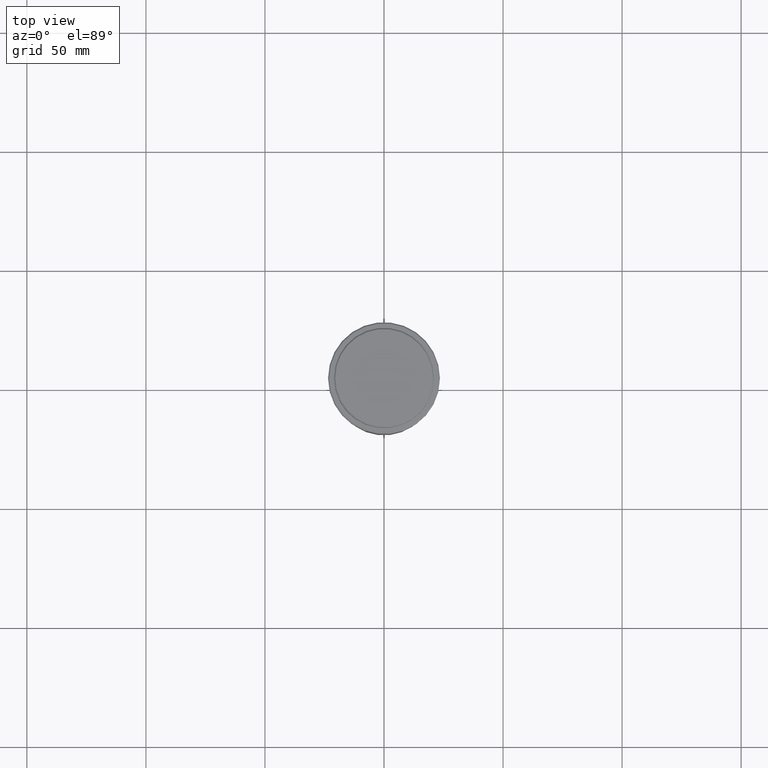
[diagram: clean part render]
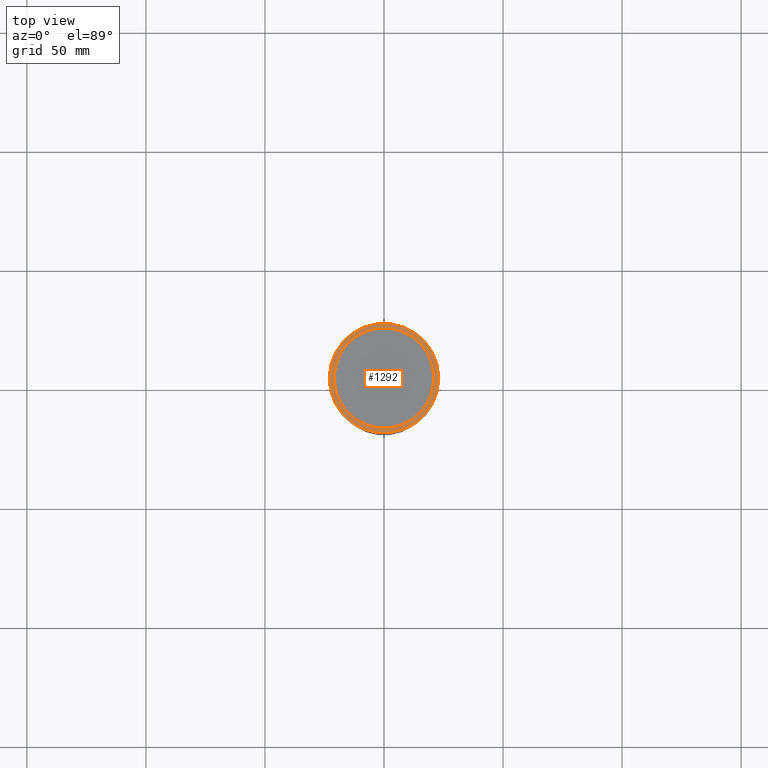
[diagram: same view with one face highlighted and labeled with its STEP entity id]
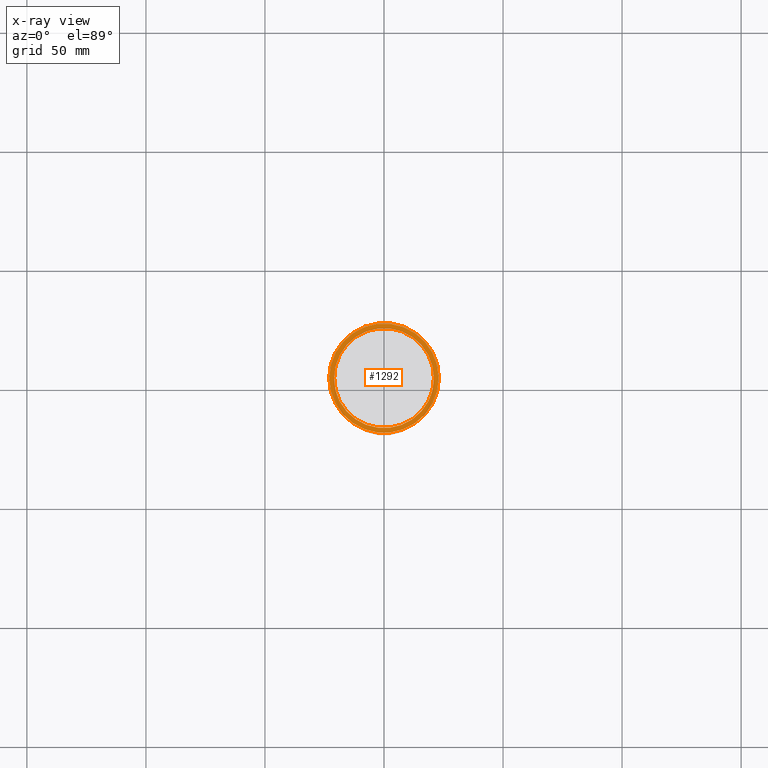
[diagram: x-ray of the same camera — body ghosted, the highlighted face saturated]
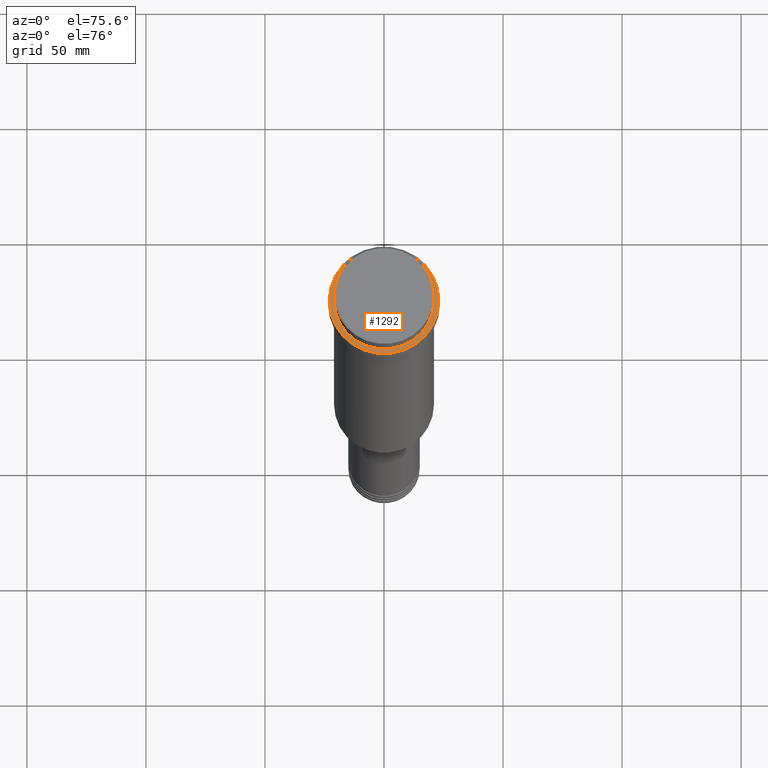
[diagram: same view with one face highlighted and labeled with its STEP entity id]
A machine part, top view. The second image highlights one B-rep face of the part: STEP entity #1292.
The next image is the same camera in x-ray: the body ghosted, the highlighted face saturated — about 0% of this face is hidden behind the body in this view.
A second angle (auxiliary view) of the same face is appended — the face is thin or edge-on in the first view.
In plain terms, the highlighted planar face has unit normal (0, -0, 1).
Its self-contained STEP definition (entity closure, byte-faithful):
#47 = EDGE_CURVE ( 'NONE', #1325, #506, #374, .T. ) ;
#92 = DIRECTION ( 'NONE',  ( 1.000000000000000000, 0.000000000000000000, 0.000000000000000000 ) ) ;
#95 = DIRECTION ( 'NONE',  ( 0.000000000000000000, -0.000000000000000000, 1.000000000000000000 ) ) ;
#107 = ORIENTED_EDGE ( 'NONE', *, *, #339, .T. ) ;
#138 = DIRECTION ( 'NONE',  ( 0.000000000000000000, 0.000000000000000000, -1.000000000000000000 ) ) ;
#164 = VERTEX_POINT ( 'NONE', #327 ) ;
#170 = CIRCLE ( 'NONE', #648, 20.99999999999999289 ) ;
#256 = CARTESIAN_POINT ( 'NONE',  ( 0.000000000000000000, 0.000000000000000000, -9.000000000000001776 ) ) ;
#327 = CARTESIAN_POINT ( 'NONE',  ( 20.99999999999999289, 0.000000000000000000, -9.000000000000001776 ) ) ;
#333 = DIRECTION ( 'NONE',  ( 1.000000000000000000, 0.000000000000000000, 0.000000000000000000 ) ) ;
#339 = EDGE_CURVE ( 'NONE', #649, #164, #170, .T. ) ;
#374 = CIRCLE ( 'NONE', #757, 23.00000000000005329 ) ;
#386 = FACE_OUTER_BOUND ( 'NONE', #1032, .T. ) ;
#412 = CARTESIAN_POINT ( 'NONE',  ( 0.000000000000000000, 0.000000000000000000, -9.000000000000001776 ) ) ;
#447 = CARTESIAN_POINT ( 'NONE',  ( 0.000000000000000000, 0.000000000000000000, -9.000000000000001776 ) ) ;
#506 = VERTEX_POINT ( 'NONE', #662 ) ;
#510 = CIRCLE ( 'NONE', #1261, 20.99999999999999289 ) ;
#578 = CIRCLE ( 'NONE', #1259, 23.00000000000005329 ) ;
#648 = AXIS2_PLACEMENT_3D ( 'NONE', #412, #824, #92 ) ;
#649 = VERTEX_POINT ( 'NONE', #1366 ) ;
#650 = CARTESIAN_POINT ( 'NONE',  ( 0.000000000000000000, 0.000000000000000000, -9.000000000000001776 ) ) ;
#662 = CARTESIAN_POINT ( 'NONE',  ( -23.00000000000005329, 0.000000000000000000, -9.000000000000001776 ) ) ;
#668 = AXIS2_PLACEMENT_3D ( 'NONE', #1069, #95, #1364 ) ;
#757 = AXIS2_PLACEMENT_3D ( 'NONE', #447, #1207, #966 ) ;
#792 = EDGE_LOOP ( 'NONE', ( #1150, #107 ) ) ;
#824 = DIRECTION ( 'NONE',  ( 0.000000000000000000, 0.000000000000000000, -1.000000000000000000 ) ) ;
#928 = EDGE_CURVE ( 'NONE', #506, #1325, #578, .T. ) ;
#966 = DIRECTION ( 'NONE',  ( 1.000000000000000000, 0.000000000000000000, 0.000000000000000000 ) ) ;
#977 = DIRECTION ( 'NONE',  ( -0.000000000000000000, -0.000000000000000000, 1.000000000000000000 ) ) ;
#1032 = EDGE_LOOP ( 'NONE', ( #1115, #1168 ) ) ;
#1054 = PLANE ( 'NONE',  #668 ) ;
#1069 = CARTESIAN_POINT ( 'NONE',  ( 0.000000000000000000, 20.49999999999999645, -9.000000000000001776 ) ) ;
#1115 = ORIENTED_EDGE ( 'NONE', *, *, #928, .T. ) ;
#1140 = DIRECTION ( 'NONE',  ( 1.000000000000000000, 0.000000000000000000, 0.000000000000000000 ) ) ;
#1150 = ORIENTED_EDGE ( 'NONE', *, *, #1181, .T. ) ;
#1168 = ORIENTED_EDGE ( 'NONE', *, *, #47, .T. ) ;
#1181 = EDGE_CURVE ( 'NONE', #164, #649, #510, .T. ) ;
#1207 = DIRECTION ( 'NONE',  ( -0.000000000000000000, -0.000000000000000000, 1.000000000000000000 ) ) ;
#1259 = AXIS2_PLACEMENT_3D ( 'NONE', #650, #977, #333 ) ;
#1261 = AXIS2_PLACEMENT_3D ( 'NONE', #256, #138, #1140 ) ;
#1276 = CARTESIAN_POINT ( 'NONE',  ( 23.00000000000005329, 2.847303808017599689E-15, -9.000000000000001776 ) ) ;
#1292 = ADVANCED_FACE ( 'NONE', ( #386, #1381 ), #1054, .T. ) ;
#1325 = VERTEX_POINT ( 'NONE', #1276 ) ;
#1364 = DIRECTION ( 'NONE',  ( 1.000000000000000000, 0.000000000000000000, 0.000000000000000000 ) ) ;
#1366 = CARTESIAN_POINT ( 'NONE',  ( -20.99999999999999289, 2.571758278209440872E-15, -9.000000000000001776 ) ) ;
#1381 = FACE_BOUND ( 'NONE', #792, .T. ) ;